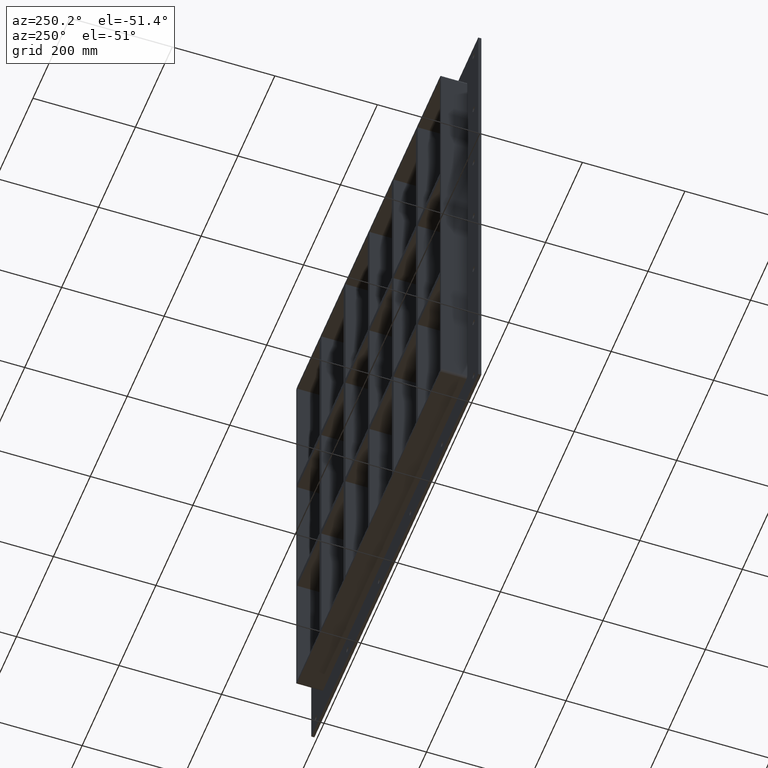
[diagram: clean part render]
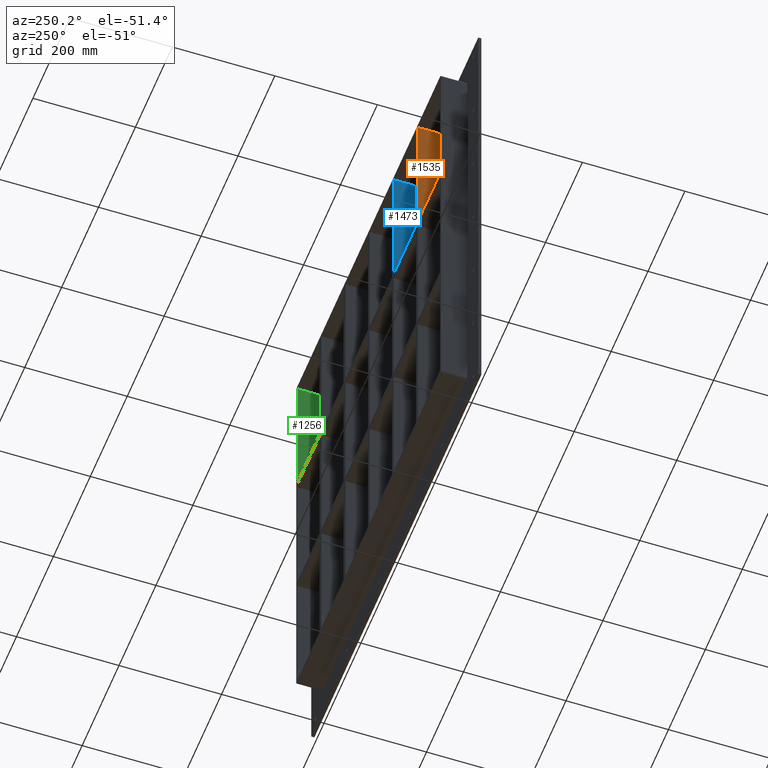
[diagram: same view with three faces highlighted in distinct colors, each labeled with its STEP entity id]
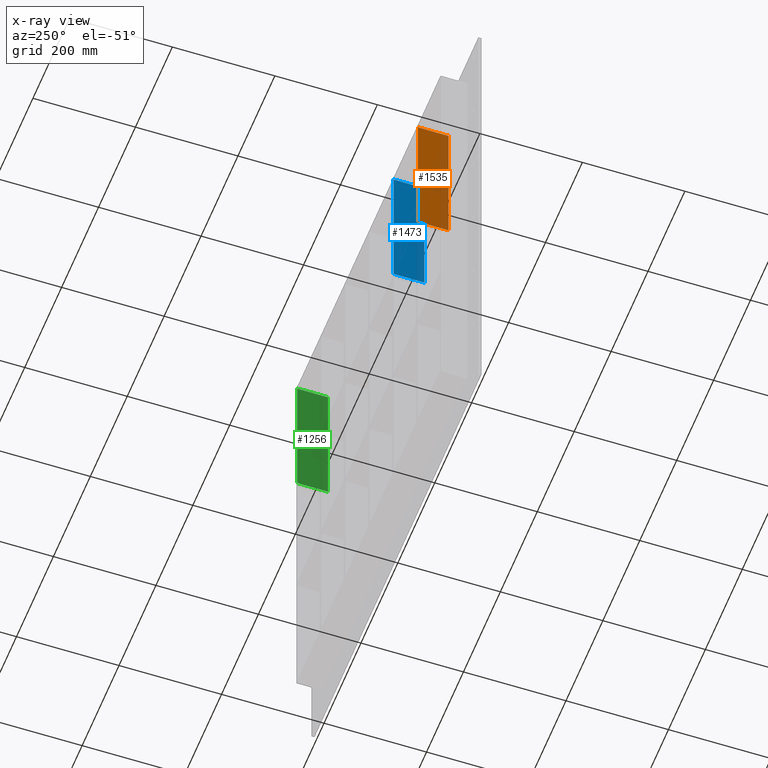
[diagram: x-ray of the same camera — body ghosted, the three highlighted faces saturated]
A machine part, auxiliary view with three faces highlighted in distinct colors.
The next image is the same camera in x-ray (body ghosted, the three faces saturated) — at least one of them is partly hidden behind the body in this view.
Their STEP definitions:

[orange] entity #1535 — the highlighted planar face has unit normal (-1, 0, 0).
#929=CARTESIAN_POINT('',(-266.00000000000216,57.0,150.99999999999989));
#930=VERTEX_POINT('',#929);
#931=CARTESIAN_POINT('',(-266.00000000000216,-3.0,150.99999999999989));
#932=VERTEX_POINT('',#931);
#933=CARTESIAN_POINT('',(-266.00000000000216,57.0,150.99999999999989));
#934=DIRECTION('',(0.0,-1.0,0.0));
#935=VECTOR('',#934,60.0);
#936=LINE('',#933,#935);
#937=EDGE_CURVE('',#930,#932,#936,.T.);
#1505=CARTESIAN_POINT('',(-266.00000000000205,-3.0,-429.00000000000011));
#1506=DIRECTION('',(-1.0,0.0,0.0));
#1507=DIRECTION('',(0.0,0.0,1.0));
#1508=AXIS2_PLACEMENT_3D('',#1505,#1506,#1507);
#1509=PLANE('',#1508);
#1510=ORIENTED_EDGE('',*,*,#937,.T.);
#1511=CARTESIAN_POINT('',(-266.00000000000222,-3.0,429.00000000000011));
#1512=VERTEX_POINT('',#1511);
#1513=CARTESIAN_POINT('',(-266.00000000000216,-3.0,150.99999999999989));
#1514=DIRECTION('',(0.0,0.0,1.0));
#1515=VECTOR('',#1514,278.00000000000023);
#1516=LINE('',#1513,#1515);
#1517=EDGE_CURVE('',#932,#1512,#1516,.T.);
#1518=ORIENTED_EDGE('',*,*,#1517,.T.);
#1519=CARTESIAN_POINT('',(-266.00000000000222,57.0,429.00000000000011));
#1520=VERTEX_POINT('',#1519);
#1521=CARTESIAN_POINT('',(-266.00000000000222,57.000000000000007,429.00000000000011));
#1522=DIRECTION('',(0.0,-1.0,0.0));
#1523=VECTOR('',#1522,60.000000000000007);
#1524=LINE('',#1521,#1523);
#1525=EDGE_CURVE('',#1520,#1512,#1524,.T.);
#1526=ORIENTED_EDGE('',*,*,#1525,.F.);
#1527=CARTESIAN_POINT('',(-266.00000000000216,57.0,150.99999999999989));
#1528=DIRECTION('',(0.0,0.0,1.0));
#1529=VECTOR('',#1528,278.00000000000023);
#1530=LINE('',#1527,#1529);
#1531=EDGE_CURVE('',#930,#1520,#1530,.T.);
#1532=ORIENTED_EDGE('',*,*,#1531,.F.);
#1533=EDGE_LOOP('',(#1510,#1518,#1526,#1532));
#1534=FACE_OUTER_BOUND('',#1533,.T.);
#1535=ADVANCED_FACE('',(#1534),#1509,.T.);

[blue] entity #1473 — the highlighted planar face has unit normal (-1, 0, 0).
#1009=CARTESIAN_POINT('',(-135.50000000000216,57.0,150.99999999999986));
#1010=VERTEX_POINT('',#1009);
#1011=CARTESIAN_POINT('',(-135.50000000000216,-3.0,150.99999999999986));
#1012=VERTEX_POINT('',#1011);
#1013=CARTESIAN_POINT('',(-135.50000000000216,57.0,150.99999999999986));
#1014=DIRECTION('',(0.0,-1.0,0.0));
#1015=VECTOR('',#1014,60.0);
#1016=LINE('',#1013,#1015);
#1017=EDGE_CURVE('',#1010,#1012,#1016,.T.);
#1443=CARTESIAN_POINT('',(-135.50000000000207,-3.0,-429.00000000000011));
#1444=DIRECTION('',(-1.0,0.0,0.0));
#1445=DIRECTION('',(0.0,0.0,1.0));
#1446=AXIS2_PLACEMENT_3D('',#1443,#1444,#1445);
#1447=PLANE('',#1446);
#1448=ORIENTED_EDGE('',*,*,#1017,.T.);
#1449=CARTESIAN_POINT('',(-135.50000000000222,-3.0,429.00000000000011));
#1450=VERTEX_POINT('',#1449);
#1451=CARTESIAN_POINT('',(-135.50000000000216,-3.0,150.99999999999989));
#1452=DIRECTION('',(0.0,0.0,1.0));
#1453=VECTOR('',#1452,278.00000000000023);
#1454=LINE('',#1451,#1453);
#1455=EDGE_CURVE('',#1012,#1450,#1454,.T.);
#1456=ORIENTED_EDGE('',*,*,#1455,.T.);
#1457=CARTESIAN_POINT('',(-135.50000000000222,57.0,429.00000000000011));
#1458=VERTEX_POINT('',#1457);
#1459=CARTESIAN_POINT('',(-135.50000000000222,57.000000000000007,429.00000000000011));
#1460=DIRECTION('',(0.0,-1.0,0.0));
#1461=VECTOR('',#1460,60.000000000000007);
#1462=LINE('',#1459,#1461);
#1463=EDGE_CURVE('',#1458,#1450,#1462,.T.);
#1464=ORIENTED_EDGE('',*,*,#1463,.F.);
#1465=CARTESIAN_POINT('',(-135.50000000000216,57.0,150.99999999999989));
#1466=DIRECTION('',(0.0,0.0,1.0));
#1467=VECTOR('',#1466,278.00000000000023);
#1468=LINE('',#1465,#1467);
#1469=EDGE_CURVE('',#1010,#1458,#1468,.T.);
#1470=ORIENTED_EDGE('',*,*,#1469,.F.);
#1471=EDGE_LOOP('',(#1448,#1456,#1464,#1470));
#1472=FACE_OUTER_BOUND('',#1471,.T.);
#1473=ADVANCED_FACE('',(#1472),#1447,.T.);

[green] entity #1256 — the highlighted planar face has unit normal (1, 0, 0).
#979=CARTESIAN_POINT('',(386.50000000000023,-3.0,150.99999999999966));
#980=VERTEX_POINT('',#979);
#987=CARTESIAN_POINT('',(386.50000000000023,57.0,150.99999999999966));
#988=VERTEX_POINT('',#987);
#989=CARTESIAN_POINT('',(386.50000000000006,57.000000000000007,150.99999999999966));
#990=DIRECTION('',(0.0,-1.0,0.0));
#991=VECTOR('',#990,60.000000000000007);
#992=LINE('',#989,#991);
#993=EDGE_CURVE('',#988,#980,#992,.T.);
#1226=CARTESIAN_POINT('',(386.50000000000006,0.0,429.00000000000011));
#1227=DIRECTION('',(1.0,0.0,0.0));
#1228=DIRECTION('',(0.0,0.0,-1.0));
#1229=AXIS2_PLACEMENT_3D('',#1226,#1227,#1228);
#1230=PLANE('',#1229);
#1231=ORIENTED_EDGE('',*,*,#993,.T.);
#1232=CARTESIAN_POINT('',(386.50000000000006,-3.0,429.00000000000011));
#1233=VERTEX_POINT('',#1232);
#1234=CARTESIAN_POINT('',(386.50000000000006,-3.0,429.00000000000011));
#1235=DIRECTION('',(0.0,0.0,-1.0));
#1236=VECTOR('',#1235,278.00000000000045);
#1237=LINE('',#1234,#1236);
#1238=EDGE_CURVE('',#1233,#980,#1237,.T.);
#1239=ORIENTED_EDGE('',*,*,#1238,.F.);
#1240=CARTESIAN_POINT('',(386.50000000000006,57.0,429.00000000000011));
#1241=VERTEX_POINT('',#1240);
#1242=CARTESIAN_POINT('',(386.50000000000006,-3.0,429.00000000000011));
#1243=DIRECTION('',(0.0,1.0,0.0));
#1244=VECTOR('',#1243,60.0);
#1245=LINE('',#1242,#1244);
#1246=EDGE_CURVE('',#1233,#1241,#1245,.T.);
#1247=ORIENTED_EDGE('',*,*,#1246,.T.);
#1248=CARTESIAN_POINT('',(386.50000000000006,57.0,150.99999999999966));
#1249=DIRECTION('',(0.0,0.0,1.0));
#1250=VECTOR('',#1249,278.00000000000045);
#1251=LINE('',#1248,#1250);
#1252=EDGE_CURVE('',#988,#1241,#1251,.T.);
#1253=ORIENTED_EDGE('',*,*,#1252,.F.);
#1254=EDGE_LOOP('',(#1231,#1239,#1247,#1253));
#1255=FACE_OUTER_BOUND('',#1254,.T.);
#1256=ADVANCED_FACE('',(#1255),#1230,.F.);